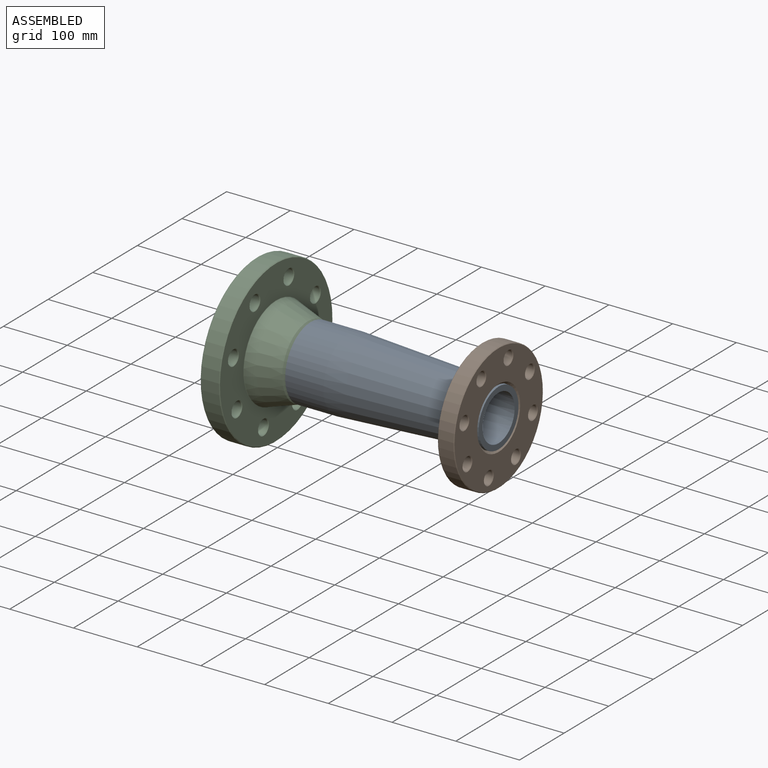
[diagram: assembled view]
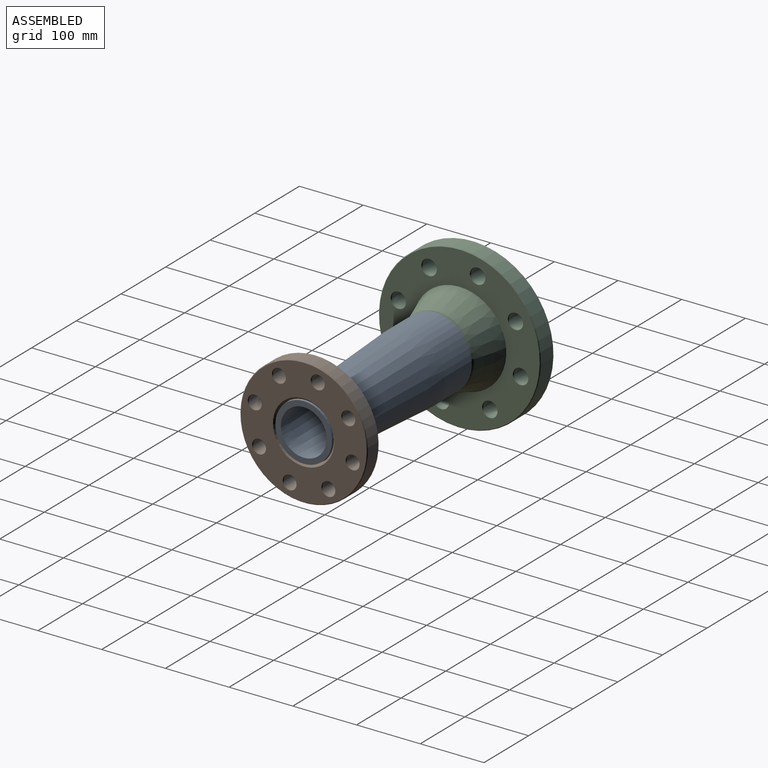
[diagram: assembled view, second angle]
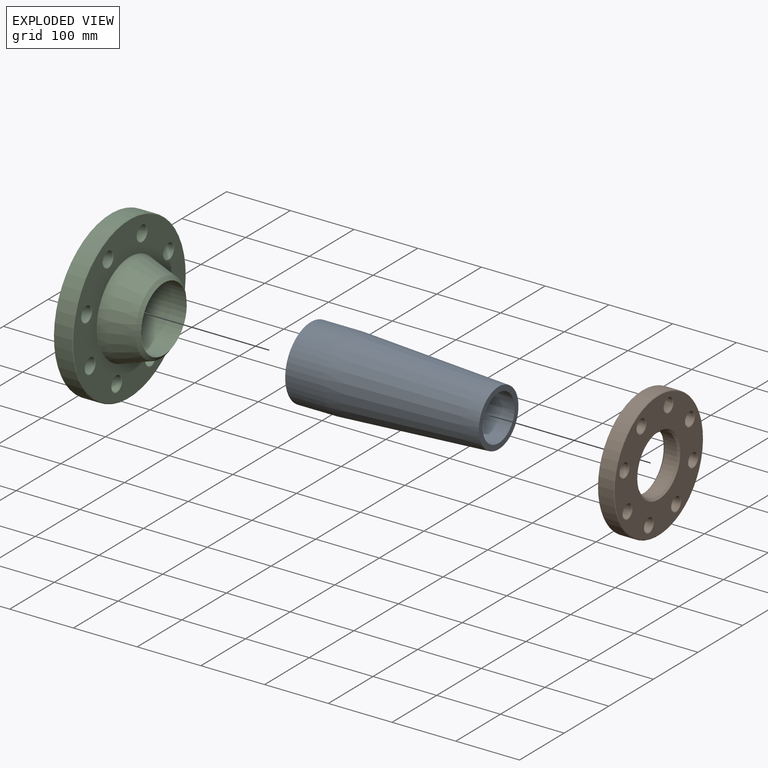
[diagram: exploded view]
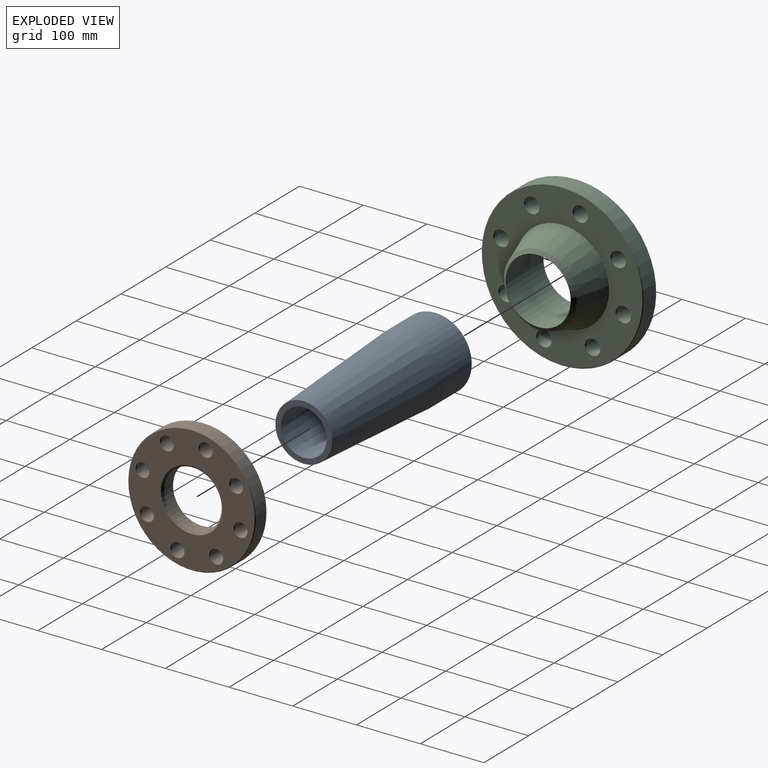
[diagram: exploded view, second angle]
ASSEMBLY  parts=3 mates=4
PART A: 6 faces, bbox 295x114.3x114.3 mm
  f0: plane 114.3x114.3mm, normal (-1,0,0), area 2855.8mm2, adj f1,f5
  f1: cylinder r=48.55mm len=97.1mm, axis (1,0,0), area 18302.9mm2, adj f0,f2
  f2: cone r=35.85mm half-angle=3.1deg, axis (-1,0,0), area 62401.3mm2, adj f1,f3
  f3: plane 88.9x88.9mm, normal (1,0,0), area 2169.5mm2, adj f2,f4
  f4: cone r=57.15mm half-angle=3.1deg, axis (-1,0,0), area 75118.1mm2, adj f3,f5
  f5: cylinder r=57.15mm len=114.3mm, axis (1,0,0), area 21545mm2, adj f0,f4
PART B: 32 faces, bbox 26x200x200 mm
  f0: cylinder r=10mm len=24mm, axis (-1,0,0), area 1508mm2, adj f26,f27
  f1: cylinder r=10mm len=24mm, axis (-1,0,0), area 1508mm2, adj f12,f13
  f2: cylinder r=10mm len=24mm, axis (-1,0,0), area 1508mm2, adj f14,f15
  f3: cylinder r=10mm len=24mm, axis (-1,0,0), area 1508mm2, adj f16,f17
  f4: cylinder r=10mm len=24mm, axis (-1,0,0), area 1508mm2, adj f18,f19
  f5: cylinder r=10mm len=24mm, axis (-1,0,0), area 1508mm2, adj f20,f21
  f6: cylinder r=10mm len=24mm, axis (-1,0,0), area 1508mm2, adj f22,f23
  f7: cylinder r=10mm len=24mm, axis (-1,0,0), area 1508mm2, adj f24,f25
  f8: cylinder r=45.25mm len=90.5mm, axis (-1,0,0), area 5686.3mm2, adj f30,f31
  f9: cylinder r=100mm len=200mm, axis (-1,0,0), area 15079.6mm2, adj f28,f29
  f10: plane 198x198mm, normal (1,0,0), area 20435.9mm2, adj f12,f14,f16,f18,f20,f22,f24,f26
  f11: plane 198x198mm, normal (-1,0,0), area 20435.9mm2, adj f13,f15,f17,f19,f21,f23,f25,f27
  f12: cone r=10mm half-angle=45deg, axis (1,0,0), area 93.3mm2, adj f1,f10
  f13: cone r=11mm half-angle=45deg, axis (-1,0,0), area 93.3mm2, adj f1,f11
  f14: cone r=10mm half-angle=45deg, axis (1,0,0), area 93.3mm2, adj f2,f10
  f15: cone r=11mm half-angle=45deg, axis (-1,0,0), area 93.3mm2, adj f2,f11
  f16: cone r=10mm half-angle=45deg, axis (1,0,0), area 93.3mm2, adj f3,f10
  f17: cone r=11mm half-angle=45deg, axis (-1,0,0), area 93.3mm2, adj f3,f11
  f18: cone r=10mm half-angle=45deg, axis (1,0,0), area 93.3mm2, adj f4,f10
  f19: cone r=11mm half-angle=45deg, axis (-1,0,0), area 93.3mm2, adj f4,f11
  f20: cone r=10mm half-angle=45deg, axis (1,0,0), area 93.3mm2, adj f5,f10
  f21: cone r=11mm half-angle=45deg, axis (-1,0,0), area 93.3mm2, adj f5,f11
  f22: cone r=10mm half-angle=45deg, axis (1,0,0), area 93.3mm2, adj f6,f10
  f23: cone r=11mm half-angle=45deg, axis (-1,0,0), area 93.3mm2, adj f6,f11
  f24: cone r=10mm half-angle=45deg, axis (1,0,0), area 93.3mm2, adj f7,f10
  f25: cone r=11mm half-angle=45deg, axis (-1,0,0), area 93.3mm2, adj f7,f11
  f26: cone r=10mm half-angle=45deg, axis (1,0,0), area 93.3mm2, adj f0,f10
  f27: cone r=11mm half-angle=45deg, axis (-1,0,0), area 93.3mm2, adj f0,f11
  f28: cone r=99mm half-angle=45deg, axis (-1,0,0), area 884.1mm2, adj f9,f10
  f29: cone r=100mm half-angle=45deg, axis (1,0,0), area 884.1mm2, adj f9,f11
  f30: cone r=45.25mm half-angle=45deg, axis (1,0,0), area 1246.2mm2, adj f8,f10
  f31: cone r=48.25mm half-angle=45deg, axis (-1,0,0), area 1246.2mm2, adj f8,f11
PART C: 36 faces, bbox 254x254x85.9 mm
  f0: plane 157.23x157.23mm, normal (0,0,1), area 10860.9mm2, adj f7,f18
  f1: cylinder r=51.18mm len=102.36mm, axis (0,0,-1), area 27286.7mm2, adj f2,f18
  f2: cone r=57.15mm half-angle=52.5deg, axis (0,0,1), area 2560.5mm2, adj f1,f3
  f3: cone r=73.03mm half-angle=17.8deg, axis (0,0,1), area 20933.3mm2, adj f2,f35
  f4: plane 252x252mm, normal (0,0,-1), area 29099.2mm2, adj f16,f19,f21,f23,f25,f27,f29,f31
  f5: cylinder r=127mm len=254mm, axis (0,0,-1), area 22472.7mm2, adj f16,f17
  f6: plane 252x252mm, normal (0,0,1), area 26773.6mm2, adj f7,f17,f20,f22,f24,f26,f28,f30
  f7: cylinder r=78.61mm len=157.23mm, axis (0,0,-1), area 784.1mm2, adj f0,f6
  f8: cylinder r=11.11mm len=28.16mm, axis (0,0,1), area 1966.4mm2, adj f25,f26
  f9: cylinder r=11.11mm len=28.16mm, axis (0,0,1), area 1966.4mm2, adj f23,f24
  f10: cylinder r=11.11mm len=28.16mm, axis (0,0,1), area 1966.4mm2, adj f21,f22
  f11: cylinder r=11.11mm len=28.16mm, axis (0,0,1), area 1966.4mm2, adj f19,f20
  f12: cylinder r=11.11mm len=28.16mm, axis (0,0,1), area 1966.4mm2, adj f33,f34
  f13: cylinder r=11.11mm len=28.16mm, axis (0,0,1), area 1966.4mm2, adj f31,f32
  f14: cylinder r=11.11mm len=28.16mm, axis (0,0,1), area 1966.4mm2, adj f29,f30
  f15: cylinder r=11.11mm len=28.16mm, axis (0,0,1), area 1966.4mm2, adj f27,f28
  f16: cone r=126mm half-angle=45deg, axis (0,0,1), area 1124mm2, adj f4,f5
  f17: cone r=127mm half-angle=45deg, axis (0,0,-1), area 1124mm2, adj f5,f6
  f18: cone r=52.18mm half-angle=45deg, axis (0,0,1), area 459.2mm2, adj f0,f1
  f19: cone r=12.11mm half-angle=45deg, axis (0,0,-1), area 103.2mm2, adj f4,f11
  f20: cone r=11.11mm half-angle=45deg, axis (0,0,1), area 103.2mm2, adj f6,f11
  f21: cone r=12.11mm half-angle=45deg, axis (0,0,-1), area 103.2mm2, adj f4,f10
  f22: cone r=11.11mm half-angle=45deg, axis (0,0,1), area 103.2mm2, adj f6,f10
  f23: cone r=12.11mm half-angle=45deg, axis (0,0,-1), area 103.2mm2, adj f4,f9
  f24: cone r=11.11mm half-angle=45deg, axis (0,0,1), area 103.2mm2, adj f6,f9
  f25: cone r=12.11mm half-angle=45deg, axis (0,0,-1), area 103.2mm2, adj f4,f8
  f26: cone r=11.11mm half-angle=45deg, axis (0,0,1), area 103.2mm2, adj f6,f8
  f27: cone r=12.11mm half-angle=45deg, axis (0,0,-1), area 103.2mm2, adj f4,f15
  f28: cone r=11.11mm half-angle=45deg, axis (0,0,1), area 103.2mm2, adj f6,f15
  f29: cone r=12.11mm half-angle=45deg, axis (0,0,-1), area 103.2mm2, adj f4,f14
  f30: cone r=11.11mm half-angle=45deg, axis (0,0,1), area 103.2mm2, adj f6,f14
  f31: cone r=12.11mm half-angle=45deg, axis (0,0,-1), area 103.2mm2, adj f4,f13
  f32: cone r=11.11mm half-angle=45deg, axis (0,0,1), area 103.2mm2, adj f6,f13
  f33: cone r=12.11mm half-angle=45deg, axis (0,0,-1), area 103.2mm2, adj f4,f12
  f34: cone r=11.11mm half-angle=45deg, axis (0,0,1), area 103.2mm2, adj f6,f12
  f35: torus R=73.75mm, axis (0,0,1), area 579.8mm2, adj f3,f4
PLACE A t=(147.13,0.05,0.4)mm fixed
PLACE B rot(axis=(-1,0,0),106deg) t=(121.13,0.05,0.4)mm
PLACE C rot(axis=(0.7,-0.1,-0.7),168.3deg) t=(-233.72,0.05,0.4)mm
MATE cylindrical B.f8 <-> A.f1  axis (-1,0,0) through (134.13,0.05,0.4)mm
MATE planar A.f1 <-> C.f1  axis (-1,0,0) through (-147.87,0.05,0.4)mm
MATE planar B.f9 <-> A.f1  axis (1,0,0) through (147.13,0.05,0.4)mm
MATE cylindrical C.f1 <-> A.f1  axis (1,0,0) through (-232.72,0.05,0.4)mm
